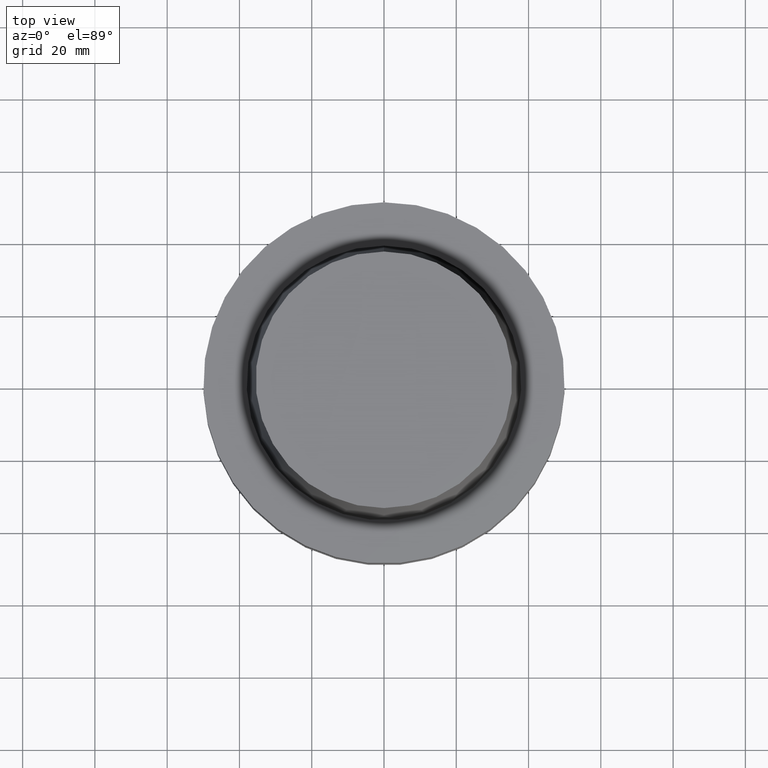
[diagram: clean part render]
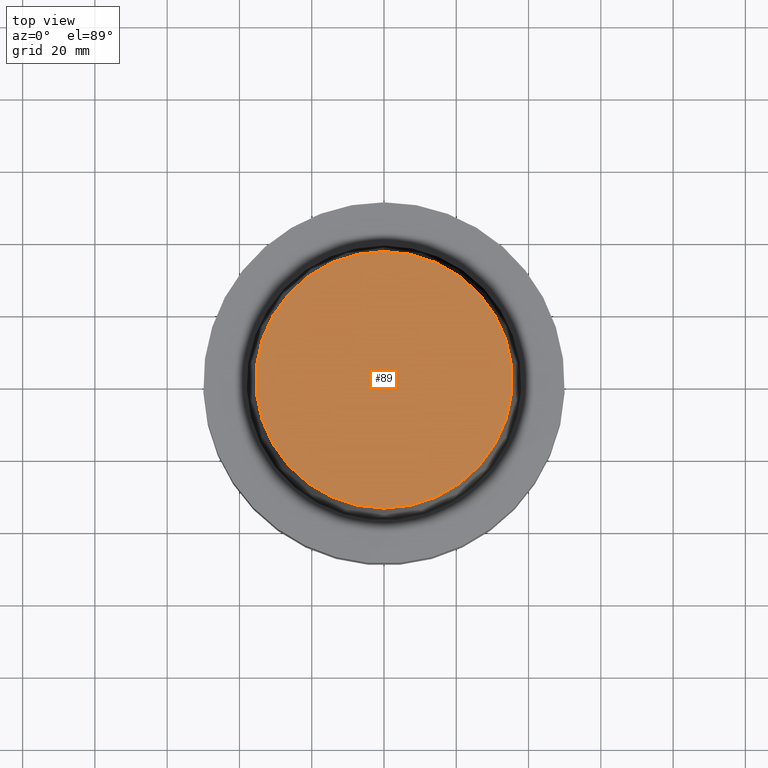
[diagram: same view with one face highlighted and labeled with its STEP entity id]
A machine part, top view. The second image highlights one B-rep face of the part: STEP entity #89.
In plain terms, the highlighted planar face has unit normal (-0, -0, 1).
Its self-contained STEP definition (entity closure, byte-faithful):
#89=ADVANCED_FACE('',(#133),#134,.T.);
#133=FACE_OUTER_BOUND('',#179,.T.);
#134=PLANE('',#180);
#179=EDGE_LOOP('',(#253));
#180=AXIS2_PLACEMENT_3D('',#254,#255,#256);
#253=ORIENTED_EDGE('',*,*,#276,.F.);
#254=CARTESIAN_POINT('',(-3.06161699786838E-015,17.7500000007809,50.0));
#255=DIRECTION('',(-6.12323399573677E-017,-1.22464679914735E-016,1.0));
#256=DIRECTION('',(1.23259516440783E-032,-1.0,-1.22464679914735E-016));
#276=EDGE_CURVE('',#305,#305,#306,.T.);
#305=VERTEX_POINT('',#335);
#306=CIRCLE('',#336,35.5000000015618);
#335=CARTESIAN_POINT('',(-3.06161699786838E-015,35.5000000015618,50.0));
#336=AXIS2_PLACEMENT_3D('',#379,#380,#381);
#379=CARTESIAN_POINT('',(-3.06161699786838E-015,-6.12323399573676E-015,50.0));
#380=DIRECTION('',(6.12323399573677E-017,1.22464679914735E-016,-1.0));
#381=DIRECTION('',(-1.23259516440783E-032,1.0,1.22464679914735E-016));